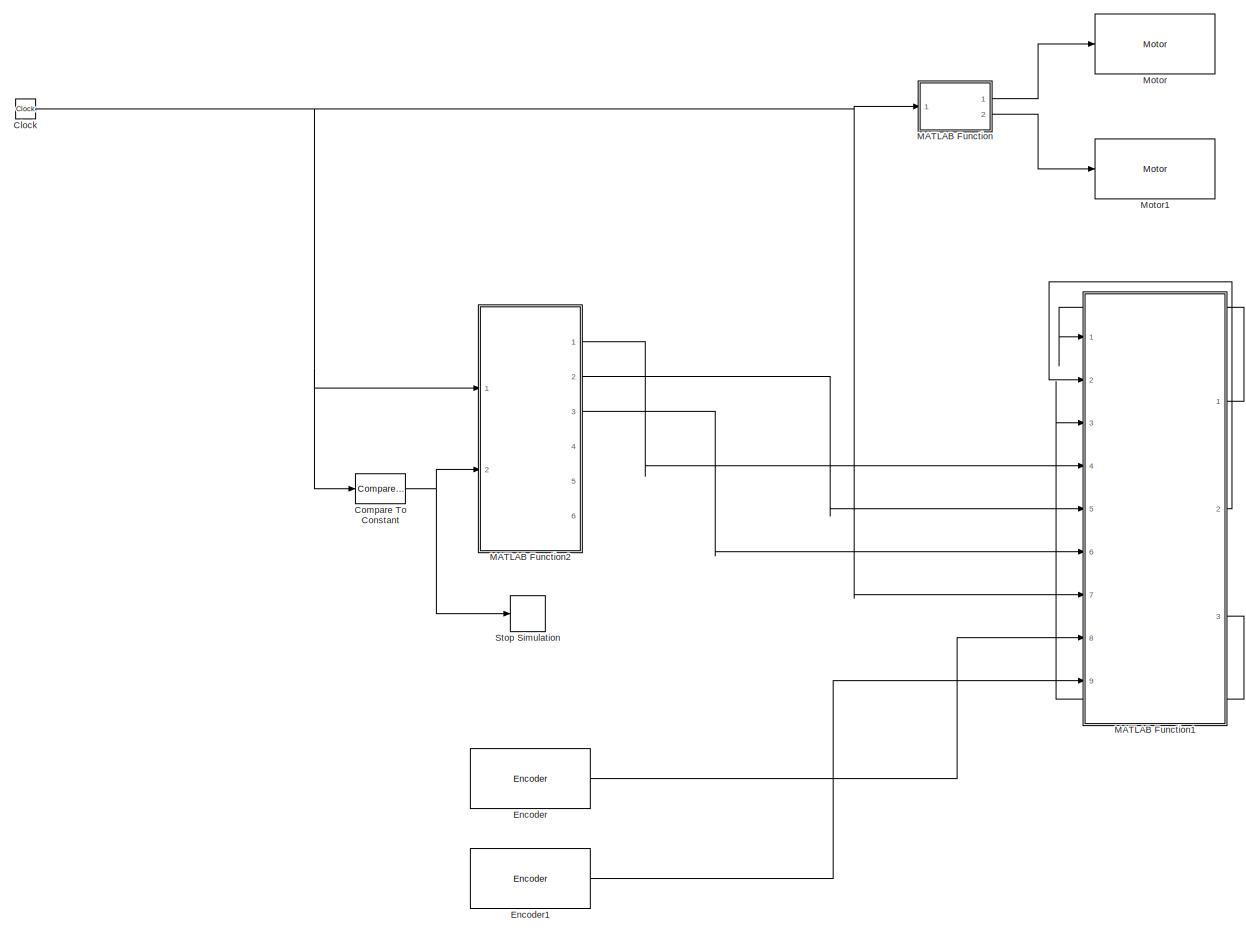
[diagram: root canvas - part 1/1, most of the canvas]
MODEL slx_bf27f77eb3cd
KIND model
CONFIG AbsTol = auto
CONFIG EnableMultiTasking = on
CONFIG FixedStep = auto
CONFIG MaxStep = auto
CONFIG MinStep = auto
CONFIG RelTol = 1e-3
CONFIG SampleTimeConstraint = Unconstrained
CONFIG Solver = FixedStepAuto
CONFIG SolverName = FixedStepAuto
CONFIG StartTime = 0.0
CONFIG StopTime = 10.0
BLOCK [Clock] Clock
BLOCK [Reference] Compare To Constant  REF=simulink/Logic and Bit
Operations/Compare
To Constant
  Ports = [1, 1]
  SourceBlock = simulink/Logic and Bit\nOperations/Compare\nTo Constant
  SourceProductBaseCode = SL
  SourceProductName = Simulink
  SourceType = Compare To Constant
BLOCK [Reference] Encoder  REF=legoev3lib/Encoder
  Ports = [0, 1]
  SourceBlock = legoev3lib/Encoder
  SourceProductBaseCode = LEGOEV3
  SourceProductName = Simulink Support Package for LEGO MINDSTORMS EV3 Hardware
  SourceType = LEGO MINDSTORMS EV3 Encoder
BLOCK [Reference] Encoder1  REF=legoev3lib/Encoder
  Ports = [0, 1]
  SourceBlock = legoev3lib/Encoder
  SourceProductBaseCode = LEGOEV3
  SourceProductName = Simulink Support Package for LEGO MINDSTORMS EV3 Hardware
  SourceType = LEGO MINDSTORMS EV3 Encoder
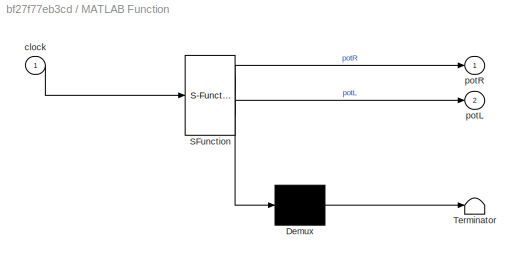
BLOCK [SubSystem] MATLAB Function
  ErrorFcn = Stateflow.Translate.translate
  PermitHierarchicalResolution = ExplicitOnly
  Ports = [1, 2]
  RequestExecContextInheritance = off
  SFBlockType = MATLAB Function
  TreatAsAtomicUnit = on
BLOCK [Demux] MATLAB Function/ Demux 
  Outputs = 1
  Ports = [1, 1]
BLOCK [S-Function] MATLAB Function/ SFunction 
  EnableBusSupport = on
  FunctionName = sf_sfun
  PortCounts = [1 3]
  Ports = [1, 3]
  SFcnIsStateOwnerBlock = off
  SFunctionDeploymentMode = off
  Tag = Stateflow S-Function 2
BLOCK [Terminator] MATLAB Function/ Terminator 
BLOCK [Inport] MATLAB Function/clock
  IconDisplay = Port number
BLOCK [Outport] MATLAB Function/potL
  IconDisplay = Port number
  Port = 2
BLOCK [Outport] MATLAB Function/potR
  IconDisplay = Port number
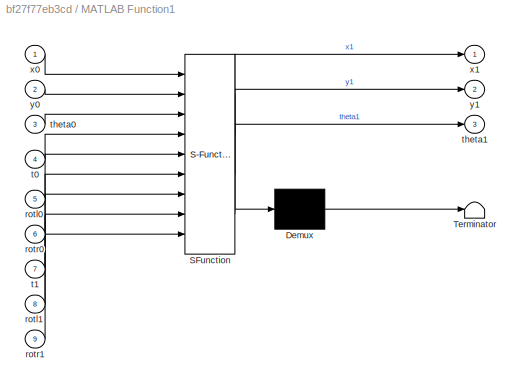
BLOCK [SubSystem] MATLAB Function1
  ErrorFcn = Stateflow.Translate.translate
  PermitHierarchicalResolution = ExplicitOnly
  Ports = [9, 3]
  RequestExecContextInheritance = off
  SFBlockType = MATLAB Function
  TreatAsAtomicUnit = on
BLOCK [Demux] MATLAB Function1/ Demux 
  Outputs = 1
  Ports = [1, 1]
BLOCK [S-Function] MATLAB Function1/ SFunction 
  EnableBusSupport = off
  FunctionName = sf_sfun
  PortCounts = [9 4]
  Ports = [9, 4]
  SFcnIsStateOwnerBlock = off
  SFunctionDeploymentMode = off
  Tag = Stateflow S-Function 1
BLOCK [Terminator] MATLAB Function1/ Terminator 
BLOCK [Inport] MATLAB Function1/rotl0
  IconDisplay = Port number
  Port = 5
BLOCK [Inport] MATLAB Function1/rotl1
  IconDisplay = Port number
  Port = 8
BLOCK [Inport] MATLAB Function1/rotr0
  IconDisplay = Port number
  Port = 6
BLOCK [Inport] MATLAB Function1/rotr1
  IconDisplay = Port number
  Port = 9
BLOCK [Inport] MATLAB Function1/t0
  IconDisplay = Port number
  Port = 4
BLOCK [Inport] MATLAB Function1/t1
  IconDisplay = Port number
  Port = 7
BLOCK [Inport] MATLAB Function1/theta0
  IconDisplay = Port number
  Port = 3
BLOCK [Outport] MATLAB Function1/theta1
  IconDisplay = Port number
  Port = 3
BLOCK [Inport] MATLAB Function1/x0
  IconDisplay = Port number
BLOCK [Outport] MATLAB Function1/x1
  IconDisplay = Port number
BLOCK [Inport] MATLAB Function1/y0
  IconDisplay = Port number
  Port = 2
BLOCK [Outport] MATLAB Function1/y1
  IconDisplay = Port number
  Port = 2
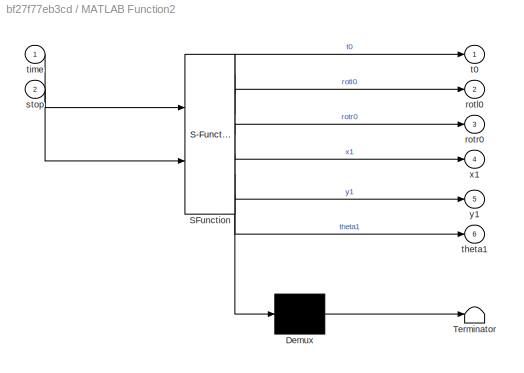
BLOCK [SubSystem] MATLAB Function2
  ErrorFcn = Stateflow.Translate.translate
  PermitHierarchicalResolution = ExplicitOnly
  Ports = [2, 6]
  RequestExecContextInheritance = off
  SFBlockType = MATLAB Function
  TreatAsAtomicUnit = on
BLOCK [Demux] MATLAB Function2/ Demux 
  Outputs = 1
  Ports = [1, 1]
BLOCK [S-Function] MATLAB Function2/ SFunction 
  EnableBusSupport = off
  FunctionName = sf_sfun
  PortCounts = [2 7]
  Ports = [2, 7]
  SFcnIsStateOwnerBlock = off
  SFunctionDeploymentMode = off
  Tag = Stateflow S-Function 3
BLOCK [Terminator] MATLAB Function2/ Terminator 
BLOCK [Outport] MATLAB Function2/rotl0
  IconDisplay = Port number
  Port = 2
BLOCK [Outport] MATLAB Function2/rotr0
  IconDisplay = Port number
  Port = 3
BLOCK [Inport] MATLAB Function2/stop
  IconDisplay = Port number
  Port = 2
BLOCK [Outport] MATLAB Function2/t0
  IconDisplay = Port number
BLOCK [Outport] MATLAB Function2/theta1
  IconDisplay = Port number
  Port = 6
BLOCK [Inport] MATLAB Function2/time
  IconDisplay = Port number
BLOCK [Outport] MATLAB Function2/x1
  IconDisplay = Port number
  Port = 4
BLOCK [Outport] MATLAB Function2/y1
  IconDisplay = Port number
  Port = 5
BLOCK [Reference] Motor  REF=legoev3lib/Motor
  Ports = [1]
  SourceBlock = legoev3lib/Motor
  SourceProductBaseCode = LEGOEV3
  SourceProductName = Simulink Support Package for LEGO MINDSTORMS EV3 Hardware
  SourceType = LEGO MINDSTORMS EV3 Motor
BLOCK [Reference] Motor1  REF=legoev3lib/Motor
  Ports = [1]
  SourceBlock = legoev3lib/Motor
  SourceProductBaseCode = LEGOEV3
  SourceProductName = Simulink Support Package for LEGO MINDSTORMS EV3 Hardware
  SourceType = LEGO MINDSTORMS EV3 Motor
BLOCK [Stop] Stop Simulation
NET Clock:1 -> Compare To Constant:1, MATLAB Function1:7, MATLAB Function2:1, MATLAB Function:1
NET Compare To Constant:1 -> MATLAB Function2:2, Stop Simulation:1
LINE Encoder1:1 -> MATLAB Function1:9
LINE Encoder:1 -> MATLAB Function1:8
LINE MATLAB Function1:1 -> MATLAB Function1:1
LINE MATLAB Function1:2 -> MATLAB Function1:2
LINE MATLAB Function1:3 -> MATLAB Function1:3
LINE MATLAB Function2:1 -> MATLAB Function1:4
LINE MATLAB Function2:2 -> MATLAB Function1:5
LINE MATLAB Function2:3 -> MATLAB Function1:6
LINE MATLAB Function:1 -> Motor:1
LINE MATLAB Function:2 -> Motor1:1
note: NET lines group one-source signal fan-out (src -> all destinations, sorted); 1:1 wires keep LINE
CHART MATLAB Function1 states=1 transitions=1
  STATE_LABEL 'eML_blk_kernel()'
  STATE_LABEL 'SCRIPT:\nfunction [x1,y1,theta1]=odometry(x0,y0,theta0,t0,rotl0,rotr0,t1,rotl1,rotr1)\n    D = 11.7;\n    R = 2.7;\n    deltaThetaL = rotl1 - rotl0;\n    deltaThetaR = rotr1 - rotr0;\n    deltaTiempo = t1 - t0;\n    \n    if deltaTiempo == 0\n        x1 = x0;\n        y1 = y0;\n        theta1 = theta0;\n    else\n    \tx1 = (deltaThetaL * R) + (deltaThetaR * R) / 2 * cos(theta0);\n    \ty1 = (deltaThetaL * R) + (...<+112ch>'
CHART MATLAB Function states=1 transitions=1
  STATE_LABEL 'eML_blk_kernel()'
  STATE_LABEL 'SCRIPT:\nfunction [potR, potL] = fcn(clock)\n\n    %Constantes generales\n    P = 50; % potencia de las ruedas\n    t_recta = 1.5 % tiempo en hacer una linea recta\n    t_giro = 1 % tiempo en girar\n  \n    persistent ultimotiempo\n    if (isempty(ultimotiempo))\n        ultimotiempo = 0;\n    end\n    \n    persistent estado\n    if (isempty(estado))\n        estado = false; % 0 --> Recto; 1 --> Giro\n    end\n  ...<+801ch>'
CHART MATLAB Function2 states=1 transitions=1
  STATE_LABEL 'eML_blk_kernel()'
  STATE_LABEL "SCRIPT:\nfunction [t0,rotl0,rotr0,x1,y1,theta1] = logger (time,stop)\npersistent myFile;\n\nif (isempty(myFile))\n    myFile= fopen('<userpath>\\Downloads\\','r');\nend\n\nif(myFile>=0)\n    if(stop>0)\n        fclose(myFile);\n    else\n        %Imprimimos los datos dentro del archivo\n        a = fscanf(myFile,'%f\\t%i\\n',time,int32(light));\n        t0=a(0,1);\n        rotl0=a(0,2);\n        rotr0=a(0,3);\n       ...<+68ch>"
